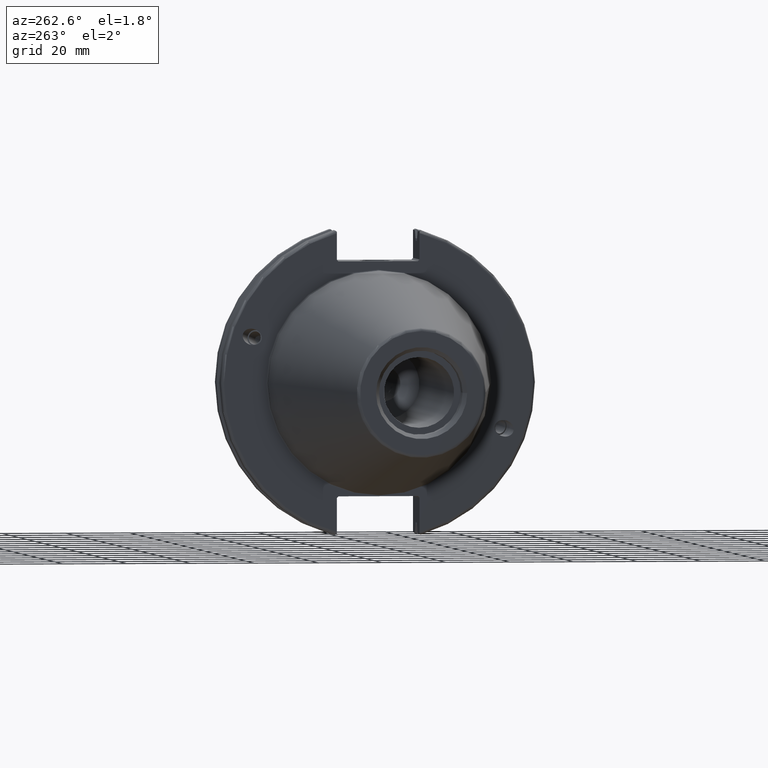
[diagram: clean part render]
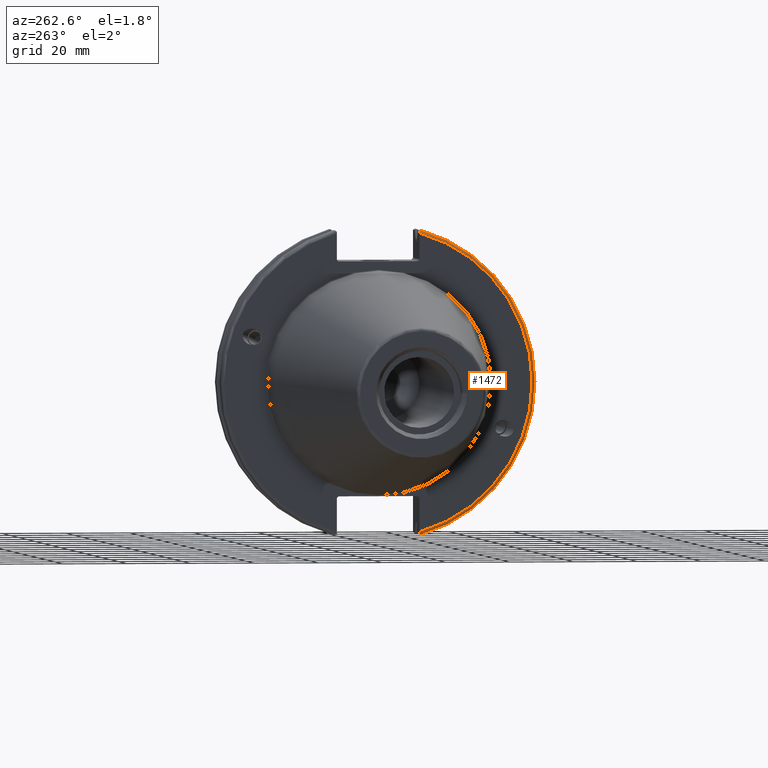
[diagram: same view with one face highlighted and labeled with its STEP entity id]
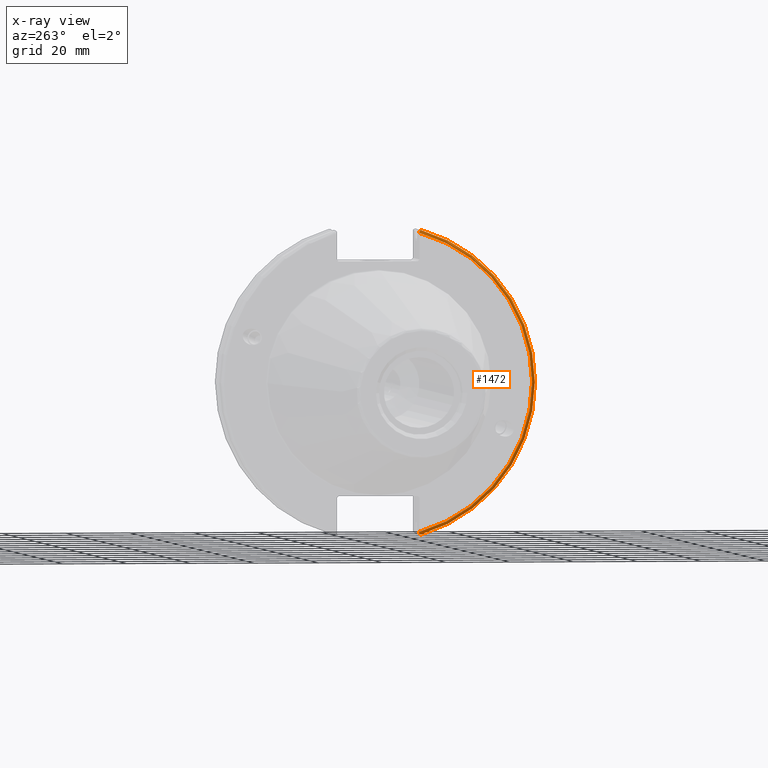
[diagram: x-ray of the same camera — body ghosted, the highlighted face saturated]
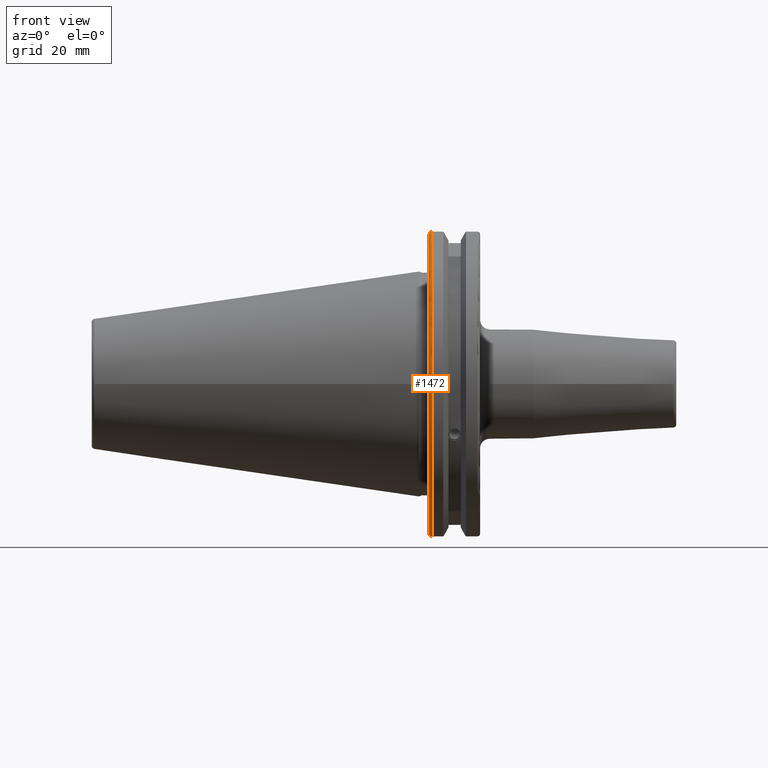
[diagram: same view with one face highlighted and labeled with its STEP entity id]
A machine part, auxiliary view. The second image highlights one B-rep face of the part: STEP entity #1472.
The next image is the same camera in x-ray: the body ghosted, the highlighted face saturated — about 0% of this face is hidden behind the body in this view.
A second angle (front view) of the same face is appended — the face is thin or edge-on in the first view.
In plain terms, the highlighted toroidal blend (fillet) surface has major radius 48.2125 mm and minor (blend) radius 1 mm.
Its self-contained STEP definition (entity closure, byte-faithful):
#64=B_SPLINE_CURVE_WITH_KNOTS('',3,(#2844,#2845,#2846,#2847,#2848,#2849),
 .UNSPECIFIED.,.F.,.F.,(4,2,4),(0.0976892167532858,0.112000071948292,0.150881870548587),
 .UNSPECIFIED.);
#65=B_SPLINE_CURVE_WITH_KNOTS('',3,(#2870,#2871,#2872,#2873,#2874,#2875),
 .UNSPECIFIED.,.F.,.F.,(4,2,4),(0.452859340315922,0.491741138916218,0.506051994111223),
 .UNSPECIFIED.);
#66=B_SPLINE_CURVE_WITH_KNOTS('',3,(#2879,#2880,#2881,#2882,#2883,#2884,
#2885,#2886),.UNSPECIFIED.,.F.,.F.,(4,2,2,4),(-0.104075769062722,-0.0730268503455485,
-0.034363987365627,0.),.UNSPECIFIED.);
#67=B_SPLINE_CURVE_WITH_KNOTS('',3,(#2889,#2890,#2891,#2892,#2893,#2894,
#2895,#2896),.UNSPECIFIED.,.F.,.F.,(4,2,2,4),(0.,0.0343639873656262,0.073026850345548,
0.104075769062723),.UNSPECIFIED.);
#393=FACE_OUTER_BOUND('',#494,.T.);
#494=EDGE_LOOP('',(#1249,#1250,#1251,#1252,#1253,#1254));
#583=CIRCLE('',#1623,48.2125);
#588=CIRCLE('',#1636,49.2125);
#703=VERTEX_POINT('',#2724);
#704=VERTEX_POINT('',#2725);
#727=VERTEX_POINT('',#2843);
#733=VERTEX_POINT('',#2868);
#734=VERTEX_POINT('',#2878);
#735=VERTEX_POINT('',#2887);
#880=EDGE_CURVE('',#703,#704,#583,.T.);
#912=EDGE_CURVE('',#727,#703,#64,.T.);
#922=EDGE_CURVE('',#704,#733,#65,.T.);
#924=EDGE_CURVE('',#733,#734,#66,.T.);
#925=EDGE_CURVE('',#734,#735,#588,.T.);
#926=EDGE_CURVE('',#735,#727,#67,.T.);
#1249=ORIENTED_EDGE('',*,*,#924,.T.);
#1250=ORIENTED_EDGE('',*,*,#925,.T.);
#1251=ORIENTED_EDGE('',*,*,#926,.T.);
#1252=ORIENTED_EDGE('',*,*,#912,.T.);
#1253=ORIENTED_EDGE('',*,*,#880,.T.);
#1254=ORIENTED_EDGE('',*,*,#922,.T.);
#1422=TOROIDAL_SURFACE('',#1635,48.2125,1.);
#1472=ADVANCED_FACE('',(#393),#1422,.T.);
#1623=AXIS2_PLACEMENT_3D('',#2726,#1919,#1920);
#1635=AXIS2_PLACEMENT_3D('',#2877,#1967,#1968);
#1636=AXIS2_PLACEMENT_3D('',#2888,#1969,#1970);
#1919=DIRECTION('center_axis',(1.,0.,0.));
#1920=DIRECTION('ref_axis',(0.,-1.,1.60812264967664E-16));
#1967=DIRECTION('center_axis',(1.,0.,0.));
#1968=DIRECTION('ref_axis',(0.,0.,-1.));
#1969=DIRECTION('center_axis',(-1.,0.,0.));
#1970=DIRECTION('ref_axis',(0.,-1.,1.60812264967664E-16));
#2724=CARTESIAN_POINT('',(3.175,-12.95,46.4407434937254));
#2725=CARTESIAN_POINT('',(3.175,-12.95,-46.4407434937254));
#2726=CARTESIAN_POINT('Origin',(3.175,0.,0.));
#2843=CARTESIAN_POINT('',(3.31949794294344,-12.95,46.9780755322918));
#2844=CARTESIAN_POINT('Ctrl Pts',(3.31949794294344,-12.95,46.9780755322918));
#2845=CARTESIAN_POINT('Ctrl Pts',(3.29341556483839,-12.95,46.9333752207329));
#2846=CARTESIAN_POINT('Ctrl Pts',(3.27115672912336,-12.95,46.887363294568));
#2847=CARTESIAN_POINT('Ctrl Pts',(3.20453530071253,-12.95,46.7230464903732));
#2848=CARTESIAN_POINT('Ctrl Pts',(3.175,-12.95,46.5703494890597));
#2849=CARTESIAN_POINT('Ctrl Pts',(3.175,-12.95,46.4407434937254));
#2868=CARTESIAN_POINT('',(3.31949794294343,-12.95,-46.9780755322917));
#2870=CARTESIAN_POINT('Ctrl Pts',(3.175,-12.95,-46.4407434937254));
#2871=CARTESIAN_POINT('Ctrl Pts',(3.175,-12.95,-46.5703494890597));
#2872=CARTESIAN_POINT('Ctrl Pts',(3.20453530071253,-12.95,-46.7230464903732));
#2873=CARTESIAN_POINT('Ctrl Pts',(3.27115672912336,-12.95,-46.887363294568));
#2874=CARTESIAN_POINT('Ctrl Pts',(3.29341556483838,-12.95,-46.9333752207329));
#2875=CARTESIAN_POINT('Ctrl Pts',(3.31949794294343,-12.95,-46.9780755322917));
#2877=CARTESIAN_POINT('Origin',(4.175,0.,0.));
#2878=CARTESIAN_POINT('',(4.175,-13.4317035994433,-47.3440544806494));
#2879=CARTESIAN_POINT('Ctrl Pts',(3.31949794294343,-12.95,-46.9780755322917));
#2880=CARTESIAN_POINT('Ctrl Pts',(3.36785032278753,-13.0300321736484,-47.0388807469102));
#2881=CARTESIAN_POINT('Ctrl Pts',(3.43235971798504,-13.1083611826073,-47.0983919657547));
#2882=CARTESIAN_POINT('Ctrl Pts',(3.58507512107923,-13.2478194810696,-47.2043467509586));
#2883=CARTESIAN_POINT('Ctrl Pts',(3.70638116490964,-13.3242014686233,-47.2623787015413));
#2884=CARTESIAN_POINT('Ctrl Pts',(3.92661103245834,-13.4067722493645,-47.3251126473446));
#2885=CARTESIAN_POINT('Ctrl Pts',(4.06045337544791,-13.4317035994434,-47.3440544806494));
#2886=CARTESIAN_POINT('Ctrl Pts',(4.175,-13.4317035994434,-47.3440544806494));
#2887=CARTESIAN_POINT('',(4.175,-13.4317035994433,47.3440544806494));
#2888=CARTESIAN_POINT('Origin',(4.175,0.,0.));
#2889=CARTESIAN_POINT('Ctrl Pts',(4.175,-13.4317035994433,47.3440544806494));
#2890=CARTESIAN_POINT('Ctrl Pts',(4.06045337544791,-13.4317035994433,47.3440544806494));
#2891=CARTESIAN_POINT('Ctrl Pts',(3.92661103245835,-13.4067722493645,47.3251126473446));
#2892=CARTESIAN_POINT('Ctrl Pts',(3.70638116490965,-13.3242014686233,47.2623787015413));
#2893=CARTESIAN_POINT('Ctrl Pts',(3.58507512107923,-13.2478194810695,47.2043467509586));
#2894=CARTESIAN_POINT('Ctrl Pts',(3.43235971798504,-13.1083611826073,47.0983919657547));
#2895=CARTESIAN_POINT('Ctrl Pts',(3.36785032278754,-13.0300321736484,47.0388807469102));
#2896=CARTESIAN_POINT('Ctrl Pts',(3.31949794294344,-12.95,46.9780755322918));